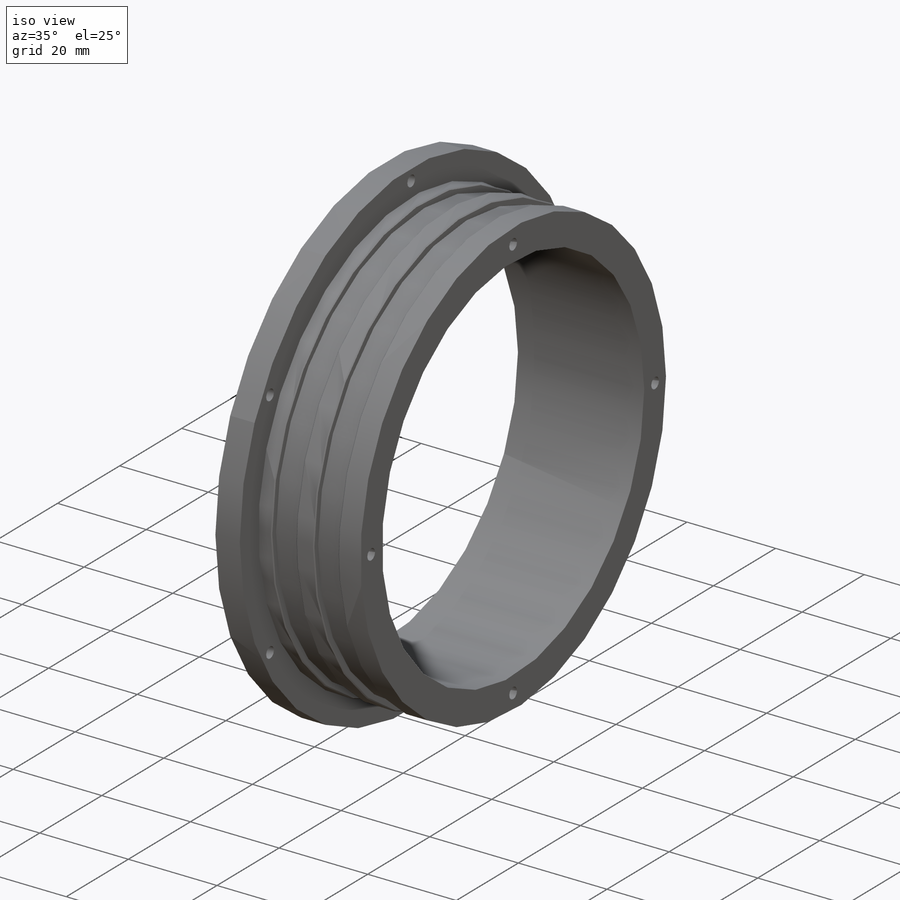
[diagram: iso view]
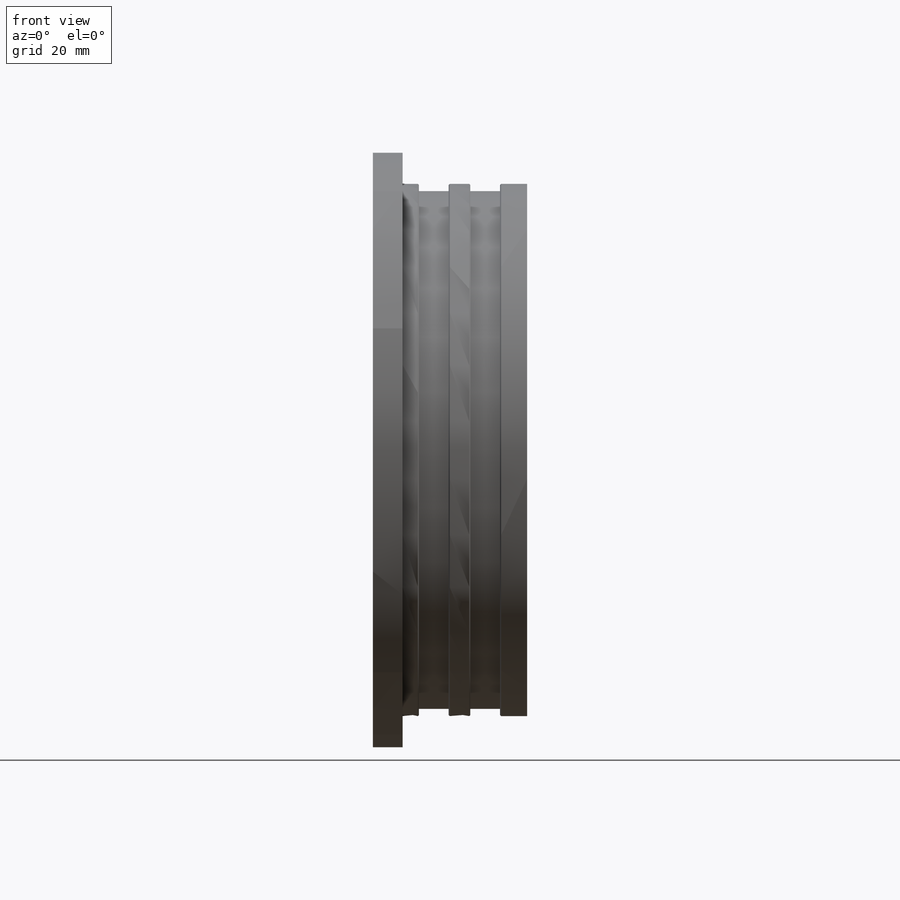
[diagram: front view]
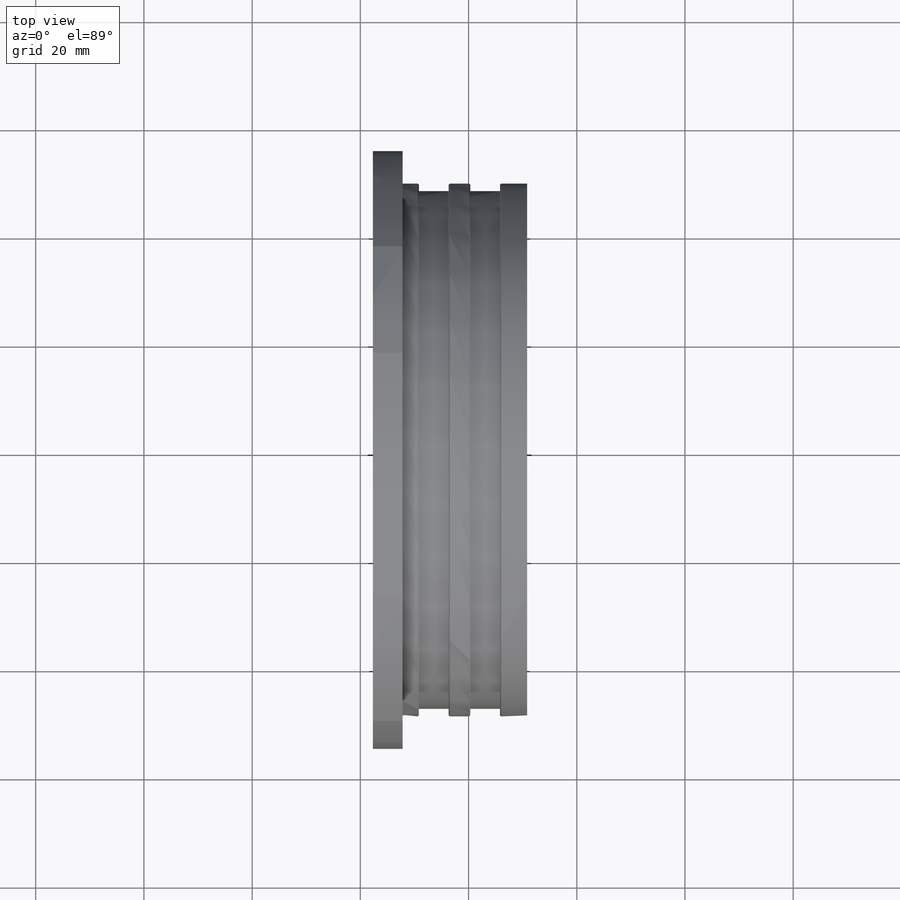
[diagram: top view]
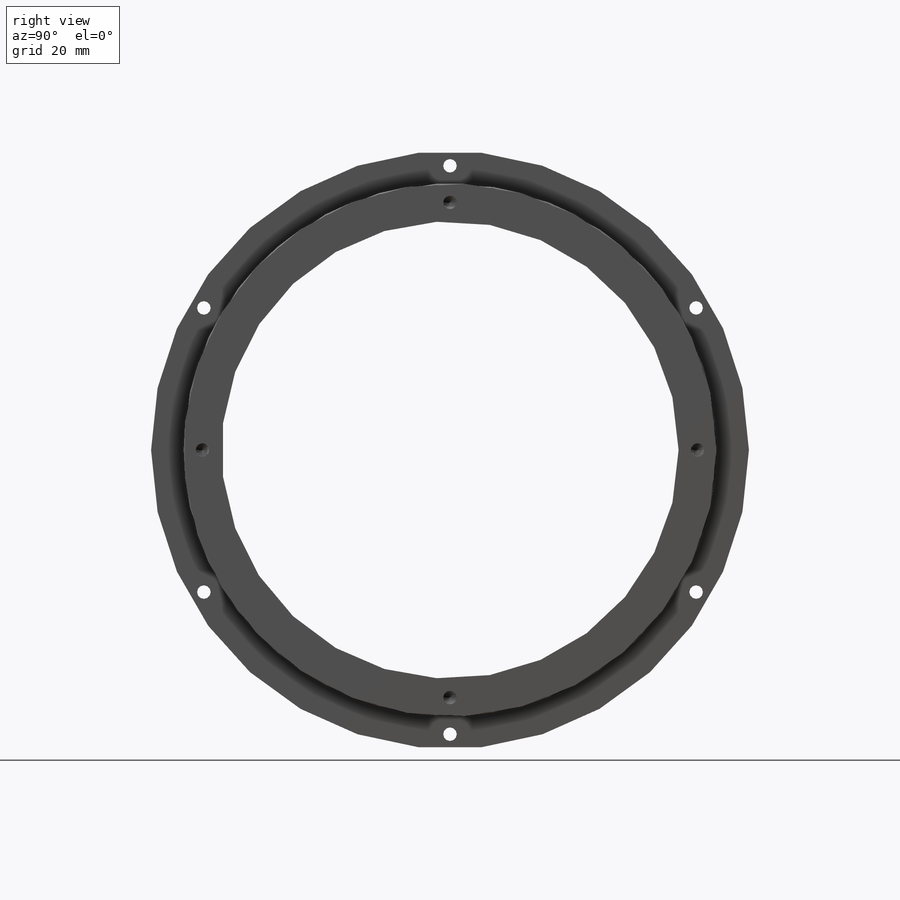
[diagram: right view]
SOLIDWORKS PART (.sldprt)
format: sldprt  version: not decoded by parser v0  size: 840,704 bytes
history: native  units: mm
features: thread x10, sketch x9, plane x3, hole x3, material x1, revolve x1, chamfer x1 (+10 scaffold rows collapsed)
feature tree (38):
  scaffold x10  (default folders/planes/origin — collapsed)
  material  "材质 <未指定>"
  plane  "前视"
  plane  "上视"
  plane  "右视"
  sketch  "草图2"  dims[D1=5.5mm D2=28.5mm D3=6.0mm D4=1.4mm D5=1.4mm D6=1.4mm D7=1.4mm D8=5.5mm D9=5.5mm D10=3.0mm D11=4.0mm D12=5.0mm D13=0.9mm D14=3.6mm D15=5.45mm D16=49.25mm D17=55.25mm D18=7.0mm D19=42.25mm D20=3.95mm]
  revolve  "旋转1"  Angle=360deg
  chamfer  "倒角1"  Distance=0.2mm Angle=45deg
  sketch  "草图3"  dims[c1.D2=~1.480857mm c1.D1=45.75mm c2.D2=4.0]
  hole  "M3x0.5 螺纹孔2"  [1 undecoded]
  sketch  "3D草图2"
  sketch  "草图5"  dims[hole-wizard template sketch: 47 standard entries collapsed; hole parameters kept: c15.螺纹孔钻头深度=4.0mm c15.D3=~14.816244mm c15.导头角度=118.0deg]
  thread  "孔螺蚊线2"  Diameter=4mm  [1 undecoded]
  hole  "M3x0.5 螺纹孔3"  [1 undecoded]
  sketch  "3D草图3"
  sketch  "草图9"  dims[hole-wizard template sketch: 47 standard entries collapsed; hole parameters kept: c15.螺纹孔钻头深度=4.0mm c15.D3=~14.816244mm c15.导头角度=118.0deg]
  thread  "孔螺蚊线3"  Diameter=4mm  [1 undecoded]
  thread  "孔螺蚊线4"  Diameter=4mm  [1 undecoded]
  thread  "孔螺蚊线5"  Diameter=4mm  [1 undecoded]
  sketch  "草图10"  dims[c1.D2=~1.629318mm c1.D1=52.525mm c2.D2=6.0]
  hole  "M3x0.5 螺纹孔4"  [1 undecoded]
  sketch  "3D草图4"
  sketch  "草图11"  dims[hole-wizard template sketch: 60 standard entries collapsed; hole parameters kept: c18.通孔螺纹孔钻头深度=28.5mm]
  thread  "孔螺蚊线6"  Diameter=3mm  [1 undecoded]
  thread  "孔螺蚊线7"  Diameter=3mm  [1 undecoded]
  thread  "孔螺蚊线8"  Diameter=3mm  [1 undecoded]
  thread  "孔螺蚊线9"  Diameter=3mm  [1 undecoded]
  thread  "孔螺蚊线10"  Diameter=3mm  [1 undecoded]
  thread  "孔螺蚊线11"  Diameter=3mm  [1 undecoded]
decode coverage: 18 of 24 modeling features carry decoded parameters
note: ~ marks probable driven/reference dimensions
note: 13 parameter values undecoded
summary: no parameter record found for 3 features
note: suppression state not decoded; provenance and decode notes live in map.json
